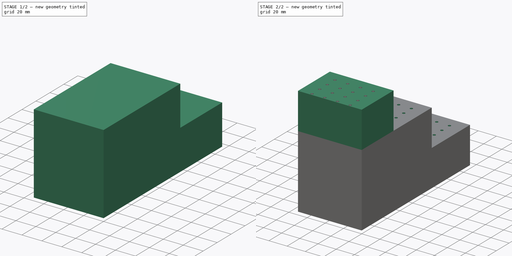
[diagram: build sequence overview — one tinted view per stage of 2, left to right]
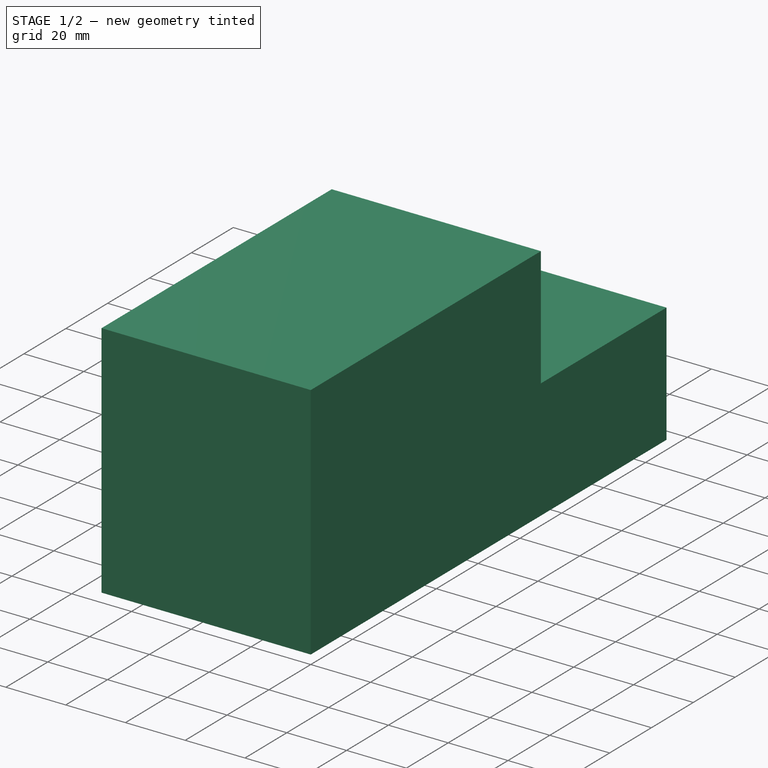
[diagram: stage 1 of 2 — iso view after this stage's code; geometry added in this stage tinted green]
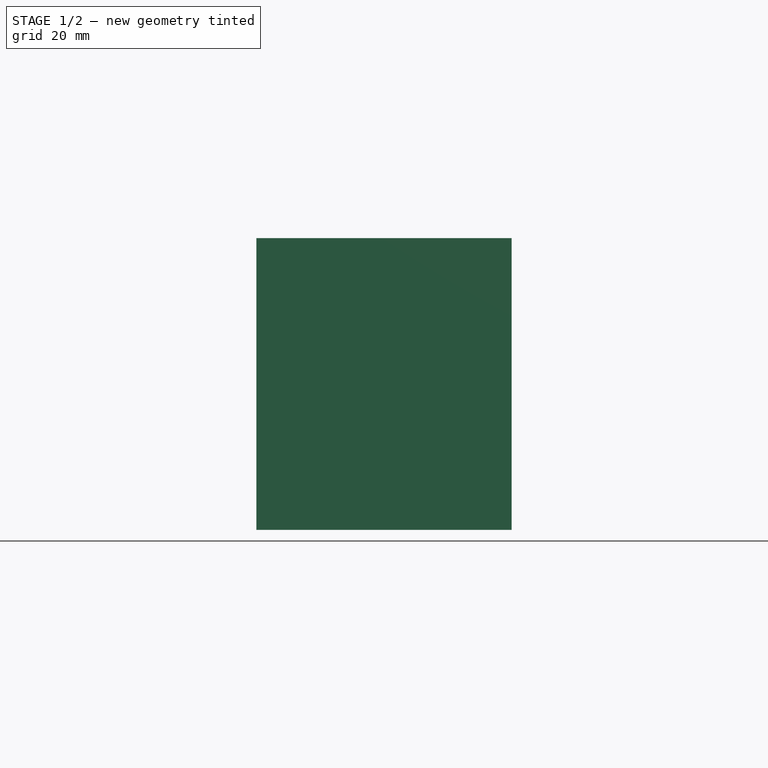
[diagram: stage 1 of 2 — front view after this stage's code; geometry added in this stage tinted green]
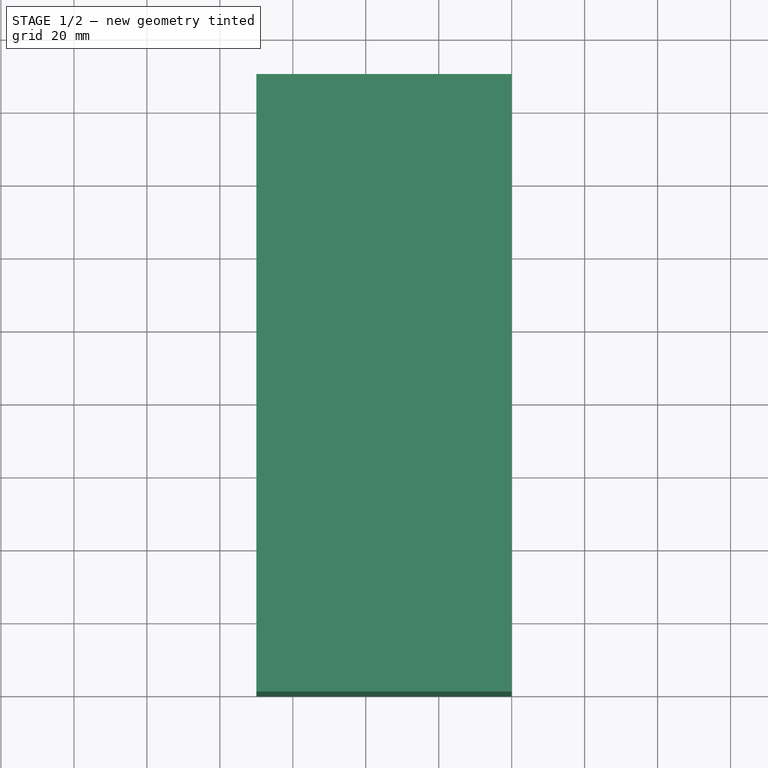
[diagram: stage 1 of 2 — top view after this stage's code; geometry added in this stage tinted green]
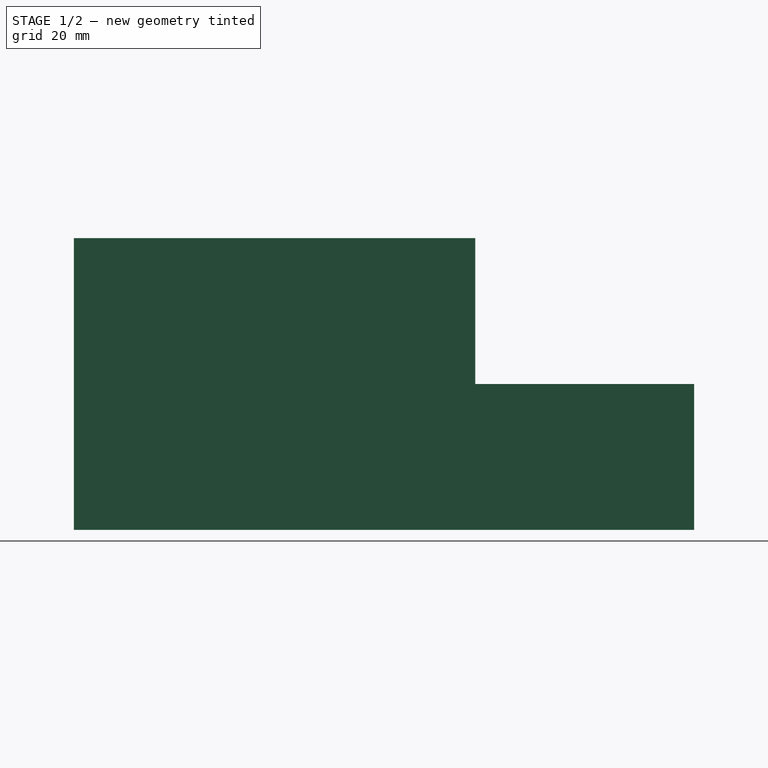
[diagram: stage 1 of 2 — right view after this stage's code; geometry added in this stage tinted green]
FCSTD DOCUMENT  (FreeCAD 0.18R4 (GitTag))
Label: FileBase
License: All rights reserved
LicenseURL: http://en.wikipedia.org/wiki/All_rights_reserved
objects: Sketcher::SketchObject×4, PartDesign::Pad×3, PartDesign::Pocket×1, PartDesign::Body×1
note: 13 computed .brp shape members not serialized (recipe doc carries the construction recipe); baked Part::Feature solids carry a one-line shape summary decoded from their .brp

FEATURE [Sketcher::SketchObject] Sketch
  MapMode = 5
  Support = -> [XY_Plane]
  sketch-geometry (4):
    g0: LineSegment StartX=0 StartY=0 StartZ=0 EndX=-70 EndY=0 EndZ=0
    g1: LineSegment StartX=-70 StartY=0 StartZ=0 EndX=-70 EndY=170 EndZ=0
    g2: LineSegment StartX=-70 StartY=170 StartZ=0 EndX=0 EndY=170 EndZ=0
    g3: LineSegment StartX=0 StartY=170 StartZ=0 EndX=0 EndY=0 EndZ=0
  constraints (11):
    c: Coincident(g0,g1)
    c: Coincident(g1,g2)
    c: Coincident(g2,g3)
    c: Coincident(g3,g0)
    c: Horizontal(g0)
    c: Horizontal(g2)
    c: Vertical(g1)
    c: Vertical(g3)
    c: Distance(g2) = 70
    c: Distance(g3) = 170
    c: Coincident(g0,g-1)
FEATURE [PartDesign::Pad] Pad
  Length = 40
  Length2 = 100
  Profile = -> Sketch
  Type = 0
FEATURE [Sketcher::SketchObject] Sketch001
  MapMode = 5
  Placement = pos=(0,0,40) rot=(0,0,1;0rad)
  Support = -> [Pad]
  sketch-geometry (4):
    g0: LineSegment StartX=0 StartY=0 StartZ=0 EndX=-70 EndY=3e-16 EndZ=0
    g1: LineSegment StartX=-70 StartY=3e-16 StartZ=0 EndX=-70 EndY=110 EndZ=0
    g2: LineSegment StartX=-70 StartY=110 StartZ=0 EndX=0 EndY=110 EndZ=0
    g3: LineSegment StartX=0 StartY=110 StartZ=0 EndX=0 EndY=0 EndZ=0
  constraints (10):
    c: Coincident(g0,g1)
    c: Coincident(g1,g2)
    c: Coincident(g2,g3)
    c: Coincident(g3,g0)
    c: Horizontal(g2)
    c: Vertical(g1)
    c: Tangent(g3,g-2)
    c: Tangent(g0,g-1)
    c: Distance(g0) = 70
    c: Distance(g3) = 110
FEATURE [PartDesign::Pad] Pad001
  BaseFeature = -> Pad
  Length = 40
  Length2 = 100
  Profile = -> Sketch001
  Type = 0
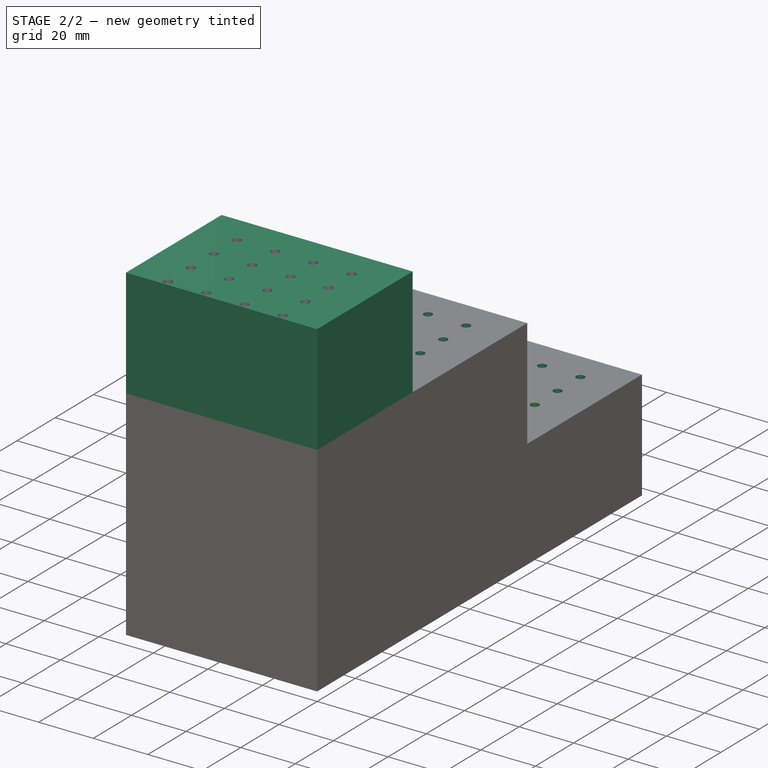
[diagram: stage 2 of 2 — iso view after this stage's code; geometry added in this stage tinted green]
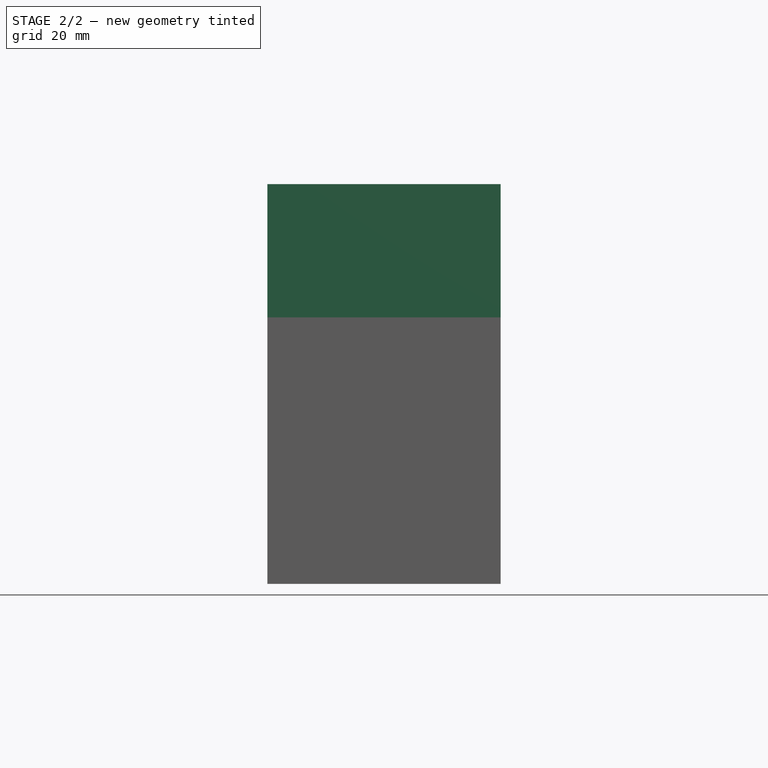
[diagram: stage 2 of 2 — front view after this stage's code; geometry added in this stage tinted green]
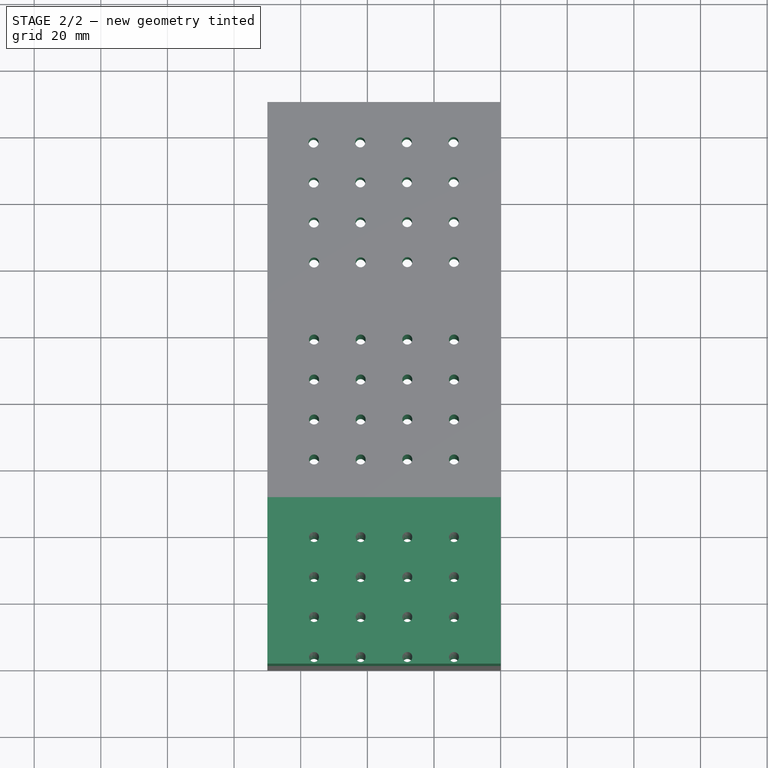
[diagram: stage 2 of 2 — top view after this stage's code; geometry added in this stage tinted green]
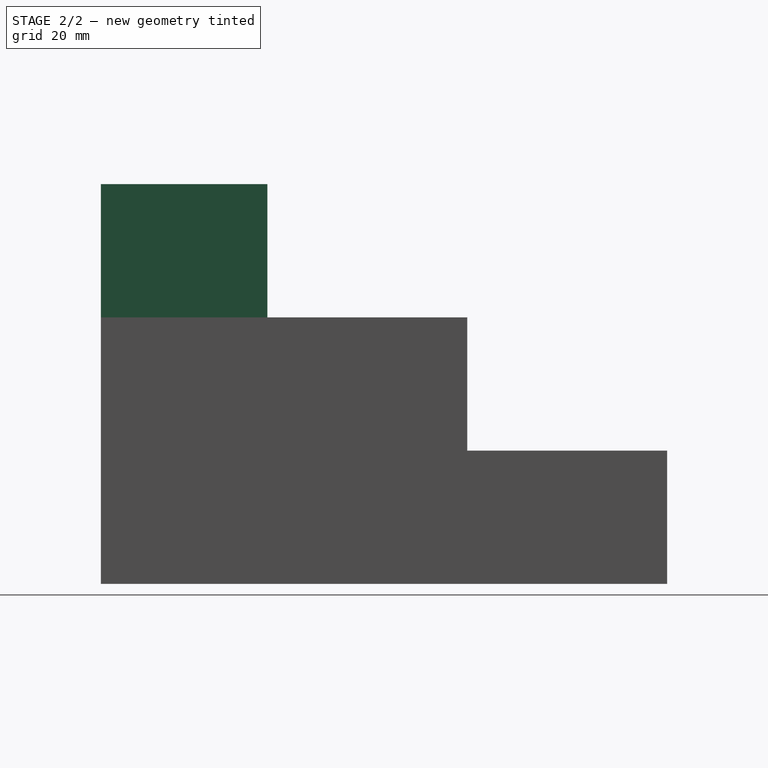
[diagram: stage 2 of 2 — right view after this stage's code; geometry added in this stage tinted green]
FEATURE [Sketcher::SketchObject] Sketch002
  MapMode = 5
  Placement = pos=(0,0,80) rot=(0,0,1;0rad)
  Support = -> [Pad001]
  sketch-geometry (4):
    g0: LineSegment StartX=0 StartY=0 StartZ=0 EndX=-70 EndY=0 EndZ=0
    g1: LineSegment StartX=-70 StartY=0 StartZ=0 EndX=-70 EndY=50 EndZ=0
    g2: LineSegment StartX=-70 StartY=50 StartZ=0 EndX=0 EndY=50 EndZ=0
    g3: LineSegment StartX=0 StartY=50 StartZ=0 EndX=0 EndY=0 EndZ=0
  constraints (11):
    c: Coincident(g0,g1)
    c: Coincident(g1,g2)
    c: Coincident(g2,g3)
    c: Coincident(g3,g0)
    c: Horizontal(g0)
    c: Horizontal(g2)
    c: Vertical(g1)
    c: Vertical(g3)
    c: Distance(g0) = 70
    c: Distance(g3) = 50
    c: Coincident(g0,g-1)
FEATURE [PartDesign::Pad] Pad002
  BaseFeature = -> Pad001
  Length = 40
  Length2 = 100
  Profile = -> Sketch002
  Type = 0
FEATURE [Sketcher::SketchObject] Sketch003
  MapMode = 5
  Placement = pos=(0,0,0) rot=(1,0,0;3.14159rad)
  Support = -> [Pad002]
  sketch-geometry (93):
    g0: Circle CenterX=-14 CenterY=-122 CenterZ=0 NormalX=0 NormalY=0 NormalZ=1 AngleXU=0 Radius=1.5
    g1: Circle CenterX=-14 CenterY=-62 CenterZ=0 NormalX=0 NormalY=0 NormalZ=1 AngleXU=0 Radius=1.5
    g2: Circle CenterX=-14 CenterY=-2 CenterZ=0 NormalX=0 NormalY=0 NormalZ=1 AngleXU=0 Radius=1.5
    g3: Circle CenterX=-14 CenterY=-14 CenterZ=0 NormalX=0 NormalY=0 NormalZ=1 AngleXU=0 Radius=1.5
    g4: LineSegment [constr] StartX=-14 StartY=-2 StartZ=0 EndX=-14 EndY=-14 EndZ=0
    g5: Circle CenterX=-14 CenterY=-26 CenterZ=0 NormalX=0 NormalY=0 NormalZ=1 AngleXU=0 Radius=1.5
    g6: LineSegment [constr] StartX=-14 StartY=-14 StartZ=0 EndX=-14 EndY=-26 EndZ=0
    g7: Circle CenterX=-14 CenterY=-38 CenterZ=0 NormalX=0 NormalY=0 NormalZ=1 AngleXU=0 Radius=1.5
    g8: LineSegment [constr] StartX=-14 StartY=-26 StartZ=0 EndX=-14 EndY=-38 EndZ=0
    g9: Circle CenterX=-28 CenterY=-2 CenterZ=0 NormalX=0 NormalY=0 NormalZ=1 AngleXU=0 Radius=1.5
    g10: LineSegment [constr] StartX=-14 StartY=-2 StartZ=0 EndX=-28 EndY=-2 EndZ=0
    g11: Circle CenterX=-28 CenterY=-14 CenterZ=0 NormalX=0 NormalY=0 NormalZ=1 AngleXU=0 Radius=1.5
    g12: LineSegment [constr] StartX=-28 StartY=-2 StartZ=0 EndX=-28 EndY=-14 EndZ=0
    g13: Circle CenterX=-28 CenterY=-26 CenterZ=0 NormalX=0 NormalY=0 NormalZ=1 AngleXU=0 Radius=1.5
    g14: LineSegment [constr] StartX=-28 StartY=-14 StartZ=0 EndX=-28 EndY=-26 EndZ=0
    g15: Circle CenterX=-28 CenterY=-38 CenterZ=0 NormalX=0 NormalY=0 NormalZ=1 AngleXU=0 Radius=1.5
    g16: LineSegment [constr] StartX=-28 StartY=-26 StartZ=0 EndX=-28 EndY=-38 EndZ=0
    g17: Circle CenterX=-42 CenterY=-2 CenterZ=0 NormalX=0 NormalY=0 NormalZ=1 AngleXU=0 Radius=1.5
    g18: LineSegment [constr] StartX=-28 StartY=-2 StartZ=0 EndX=-42 EndY=-2 EndZ=0
    g19: Circle CenterX=-42 CenterY=-14 CenterZ=0 NormalX=0 NormalY=0 NormalZ=1 AngleXU=0 Radius=1.5
    g20: LineSegment [constr] StartX=-42 StartY=-2 StartZ=0 EndX=-42 EndY=-14 EndZ=0
    g21: Circle CenterX=-42 CenterY=-26 CenterZ=0 NormalX=0 NormalY=0 NormalZ=1 AngleXU=0 Radius=1.5
    g22: LineSegment [constr] StartX=-42 StartY=-14 StartZ=0 EndX=-42 EndY=-26 EndZ=0
    g23: Circle CenterX=-42 CenterY=-38 CenterZ=0 NormalX=0 NormalY=0 NormalZ=1 AngleXU=0 Radius=1.5
    g24: LineSegment [constr] StartX=-42 StartY=-26 StartZ=0 EndX=-42 EndY=-38 EndZ=0
    g25: Circle CenterX=-56 CenterY=-2 CenterZ=0 NormalX=0 NormalY=0 NormalZ=1 AngleXU=0 Radius=1.5
    g26: LineSegment [constr] StartX=-42 StartY=-2 StartZ=0 EndX=-56 EndY=-2 EndZ=0
    g27: Circle CenterX=-56 CenterY=-14 CenterZ=0 NormalX=0 NormalY=0 NormalZ=1 AngleXU=0 Radius=1.5
    g28: LineSegment [constr] StartX=-56 StartY=-2 StartZ=0 EndX=-56 EndY=-14 EndZ=0
    g29: Circle CenterX=-56 CenterY=-26 CenterZ=0 NormalX=0 NormalY=0 NormalZ=1 AngleXU=0 Radius=1.5
    g30: LineSegment [constr] StartX=-56 StartY=-14 StartZ=0 EndX=-56 EndY=-26 EndZ=0
    g31: Circle CenterX=-56 CenterY=-38 CenterZ=0 NormalX=0 NormalY=0 NormalZ=1 AngleXU=0 Radius=1.5
    g32: LineSegment [constr] StartX=-56 StartY=-26 StartZ=0 EndX=-56 EndY=-38 EndZ=0
    g33: Circle CenterX=-14 CenterY=-74 CenterZ=0 NormalX=0 NormalY=0 NormalZ=1 AngleXU=0 Radius=1.5
    g34: LineSegment [constr] StartX=-14 StartY=-62 StartZ=0 EndX=-14 EndY=-74 EndZ=0
    g35: Circle CenterX=-14 CenterY=-86 CenterZ=0 NormalX=0 NormalY=0 NormalZ=1 AngleXU=0 Radius=1.5
    g36: LineSegment [constr] StartX=-14 StartY=-74 StartZ=0 EndX=-14 EndY=-86 EndZ=0
    g37: Circle CenterX=-14 CenterY=-98 CenterZ=0 NormalX=0 NormalY=0 NormalZ=1 AngleXU=0 Radius=1.5
    g38: LineSegment [constr] StartX=-14 StartY=-86 StartZ=0 EndX=-14 EndY=-98 EndZ=0
    g39: Circle CenterX=-28 CenterY=-62 CenterZ=0 NormalX=0 NormalY=0 NormalZ=1 AngleXU=0 Radius=1.5
    g40: LineSegment [constr] StartX=-14 StartY=-62 StartZ=0 EndX=-28 EndY=-62 EndZ=0
    g41: Circle CenterX=-28 CenterY=-74 CenterZ=0 NormalX=0 NormalY=0 NormalZ=1 AngleXU=0 Radius=1.5
    g42: LineSegment [constr] StartX=-28 StartY=-62 StartZ=0 EndX=-28 EndY=-74 EndZ=0
    g43: Circle CenterX=-28 CenterY=-86 CenterZ=0 NormalX=0 NormalY=0 NormalZ=1 AngleXU=0 Radius=1.5
    g44: LineSegment [constr] StartX=-28 StartY=-74 StartZ=0 EndX=-28 EndY=-86 EndZ=0
    g45: Circle CenterX=-28 CenterY=-98 CenterZ=0 NormalX=0 NormalY=0 NormalZ=1 AngleXU=0 Radius=1.5
    g46: LineSegment [constr] StartX=-28 StartY=-86 StartZ=0 EndX=-28 EndY=-98 EndZ=0
    g47: Circle CenterX=-42 CenterY=-62 CenterZ=0 NormalX=0 NormalY=0 NormalZ=1 AngleXU=0 Radius=1.5
    g48: LineSegment [constr] StartX=-28 StartY=-62 StartZ=0 EndX=-42 EndY=-62 EndZ=0
    g49: Circle CenterX=-42 CenterY=-74 CenterZ=0 NormalX=0 NormalY=0 NormalZ=1 AngleXU=0 Radius=1.5
    g50: LineSegment [constr] StartX=-42 StartY=-62 StartZ=0 EndX=-42 EndY=-74 EndZ=0
    g51: Circle CenterX=-42 CenterY=-86 CenterZ=0 NormalX=0 NormalY=0 NormalZ=1 AngleXU=0 Radius=1.5
    g52: LineSegment [constr] StartX=-42 StartY=-74 StartZ=0 EndX=-42 EndY=-86 EndZ=0
    g53: Circle CenterX=-42 CenterY=-98 CenterZ=0 NormalX=0 NormalY=0 NormalZ=1 AngleXU=0 Radius=1.5
    g54: LineSegment [constr] StartX=-42 StartY=-86 StartZ=0 EndX=-42 EndY=-98 EndZ=0
    g55: Circle CenterX=-56 CenterY=-62 CenterZ=0 NormalX=0 NormalY=0 NormalZ=1 AngleXU=0 Radius=1.5
    g56: LineSegment [constr] StartX=-42 StartY=-62 StartZ=0 EndX=-56 EndY=-62 EndZ=0
    g57: Circle CenterX=-56 CenterY=-74 CenterZ=0 NormalX=0 NormalY=0 NormalZ=1 AngleXU=0 Radius=1.5
    g58: LineSegment [constr] StartX=-56 StartY=-62 StartZ=0 EndX=-56 EndY=-74 EndZ=0
    g59: Circle CenterX=-56 CenterY=-86 CenterZ=0 NormalX=0 NormalY=0 NormalZ=1 AngleXU=0 Radius=1.5
    g60: LineSegment [constr] StartX=-56 StartY=-74 StartZ=0 EndX=-56 EndY=-86 EndZ=0
    g61: Circle CenterX=-56 CenterY=-98 CenterZ=0 NormalX=0 NormalY=0 NormalZ=1 AngleXU=0 Radius=1.5
    g62: LineSegment [constr] StartX=-56 StartY=-86 StartZ=0 EndX=-56 EndY=-98 EndZ=0
    g63: Circle CenterX=-14.0502 CenterY=-134 CenterZ=0 NormalX=0 NormalY=0 NormalZ=1 AngleXU=0 Radius=1.5
    g64: LineSegment [constr] StartX=-14 StartY=-122 StartZ=0 EndX=-14.0502 EndY=-134 EndZ=0
    g65: Circle CenterX=-14.1004 CenterY=-146 CenterZ=0 NormalX=0 NormalY=0 NormalZ=1 AngleXU=0 Radius=1.5
    g66: LineSegment [constr] StartX=-14.0502 StartY=-134 StartZ=0 EndX=-14.1004 EndY=-146 EndZ=0
    g67: Circle CenterX=-14.1506 CenterY=-158 CenterZ=0 NormalX=0 NormalY=0 NormalZ=1 AngleXU=0 Radius=1.5
    g68: LineSegment [constr] StartX=-14.1004 StartY=-146 StartZ=0 EndX=-14.1506 EndY=-158 EndZ=0
    g69: Circle CenterX=-27.9999 CenterY=-121.941 CenterZ=0 NormalX=0 NormalY=0 NormalZ=1 AngleXU=0 Radius=1.5
    g70: LineSegment [constr] StartX=-14 StartY=-122 StartZ=0 EndX=-27.9999 EndY=-121.941 EndZ=0
    g71: Circle CenterX=-28.0501 CenterY=-133.941 CenterZ=0 NormalX=0 NormalY=0 NormalZ=1 AngleXU=0 Radius=1.5
    g72: LineSegment [constr] StartX=-27.9999 StartY=-121.941 StartZ=0 EndX=-28.0501 EndY=-133.941 EndZ=0
    g73: Circle CenterX=-28.1003 CenterY=-145.941 CenterZ=0 NormalX=0 NormalY=0 NormalZ=1 AngleXU=0 Radius=1.5
    g74: LineSegment [constr] StartX=-28.0501 StartY=-133.941 StartZ=0 EndX=-28.1003 EndY=-145.941 EndZ=0
    g75: Circle CenterX=-28.1505 CenterY=-157.941 CenterZ=0 NormalX=0 NormalY=0 NormalZ=1 AngleXU=0 Radius=1.5
    g76: LineSegment [constr] StartX=-28.1003 StartY=-145.941 StartZ=0 EndX=-28.1505 EndY=-157.941 EndZ=0
    g77: Circle CenterX=-41.9998 CenterY=-121.883 CenterZ=0 NormalX=0 NormalY=0 NormalZ=1 AngleXU=0 Radius=1.5
    g78: LineSegment [constr] StartX=-27.9999 StartY=-121.941 StartZ=0 EndX=-41.9998 EndY=-121.883 EndZ=0
    g79: Circle CenterX=-42.05 CenterY=-133.883 CenterZ=0 NormalX=0 NormalY=0 NormalZ=1 AngleXU=0 Radius=1.5
    g80: LineSegment [constr] StartX=-41.9998 StartY=-121.883 StartZ=0 EndX=-42.05 EndY=-133.883 EndZ=0
    g81: Circle CenterX=-42.1002 CenterY=-145.883 CenterZ=0 NormalX=0 NormalY=0 NormalZ=1 AngleXU=0 Radius=1.5
    g82: LineSegment [constr] StartX=-42.05 StartY=-133.883 StartZ=0 EndX=-42.1002 EndY=-145.883 EndZ=0
    g83: Circle CenterX=-42.1504 CenterY=-157.883 CenterZ=0 NormalX=0 NormalY=0 NormalZ=1 AngleXU=0 Radius=1.5
    g84: LineSegment [constr] StartX=-42.1002 StartY=-145.883 StartZ=0 EndX=-42.1504 EndY=-157.883 EndZ=0
    g85: Circle CenterX=-55.9996 CenterY=-121.824 CenterZ=0 NormalX=0 NormalY=0 NormalZ=1 AngleXU=0 Radius=1.5
    g86: LineSegment [constr] StartX=-41.9998 StartY=-121.883 StartZ=0 EndX=-55.9996 EndY=-121.824 EndZ=0
    g87: Circle CenterX=-56.0498 CenterY=-133.824 CenterZ=0 NormalX=0 NormalY=0 NormalZ=1 AngleXU=0 Radius=1.5
    g88: LineSegment [constr] StartX=-55.9996 StartY=-121.824 StartZ=0 EndX=-56.0498 EndY=-133.824 EndZ=0
    g89: Circle CenterX=-56.1 CenterY=-145.824 CenterZ=0 NormalX=0 NormalY=0 NormalZ=1 AngleXU=0 Radius=1.5
    g90: LineSegment [constr] StartX=-56.0498 StartY=-133.824 StartZ=0 EndX=-56.1 EndY=-145.824 EndZ=0
    g91: Circle CenterX=-56.1503 CenterY=-157.824 CenterZ=0 NormalX=0 NormalY=0 NormalZ=1 AngleXU=0 Radius=1.5
    g92: LineSegment [constr] StartX=-56.1 StartY=-145.824 StartZ=0 EndX=-56.1503 EndY=-157.824 EndZ=0
  constraints (234):
    c: Radius(g2) = 1.5
    c: Distance(g2,g-2) = 14
    c: Distance(g2,g-1) = 2
    c: Radius(g3) = 1.5
    c: Coincident(g2,g4)
    c: Coincident(g3,g4)
    c: Distance(g4) = 12
    c: Angle(g4) = -1.5708
    c: Radius(g5) = 1.5
    c: Coincident(g3,g6)
    c: Coincident(g5,g6)
    c: Equal(g4,g6)
    c: Parallel(g6,g4)
    c: Radius(g7) = 1.5
    c: Coincident(g5,g8)
    c: Coincident(g7,g8)
    c: Equal(g4,g8)
    c: Parallel(g8,g4)
    c: Radius(g9) = 1.5
    c: Coincident(g2,g10)
    c: Coincident(g9,g10)
    c: Distance(g10) = 14
    c: Perpendicular(g10,g4)
    c: Radius(g11) = 1.5
    c: Coincident(g9,g12)
    c: Coincident(g11,g12)
    c: Equal(g4,g12)
    c: Parallel(g12,g4)
    c: Radius(g13) = 1.5
    c: Coincident(g11,g14)
    c: Coincident(g13,g14)
    c: Equal(g4,g14)
    c: Parallel(g14,g4)
    c: Radius(g15) = 1.5
    c: Coincident(g13,g16)
    c: Coincident(g15,g16)
    c: Equal(g4,g16)
    c: Parallel(g16,g4)
    c: Radius(g17) = 1.5
    c: Coincident(g9,g18)
    c: Coincident(g17,g18)
    c: Equal(g10,g18)
    c: Perpendicular(g18,g4)
    c: Radius(g19) = 1.5
    c: Coincident(g17,g20)
    c: Coincident(g19,g20)
    c: Equal(g4,g20)
    c: Parallel(g20,g4)
    c: Radius(g21) = 1.5
    c: Coincident(g19,g22)
    c: Coincident(g21,g22)
    c: Equal(g4,g22)
    c: Parallel(g22,g4)
    c: Radius(g23) = 1.5
    c: Coincident(g21,g24)
    c: Coincident(g23,g24)
    c: Equal(g4,g24)
    c: Parallel(g24,g4)
    c: Radius(g25) = 1.5
    c: Coincident(g17,g26)
    c: Coincident(g25,g26)
    c: Equal(g10,g26)
    c: Perpendicular(g26,g4)
    c: Radius(g27) = 1.5
    c: Coincident(g25,g28)
    c: Coincident(g27,g28)
    c: Equal(g4,g28)
    c: Parallel(g28,g4)
    c: Radius(g29) = 1.5
    c: Coincident(g27,g30)
    c: Coincident(g29,g30)
    c: Equal(g4,g30)
    c: Parallel(g30,g4)
    c: Radius(g31) = 1.5
    c: Coincident(g29,g32)
    c: Coincident(g31,g32)
    c: Equal(g4,g32)
    c: Parallel(g32,g4)
    c: Radius(g1) = 1.5
    c: Distance(g1,g7) = 24
    c: Distance(g1,g-2) = 14
    c: Radius(g33) = 1.5
    c: Coincident(g1,g34)
    c: Coincident(g33,g34)
    c: Distance(g34) = 12
    c: Angle(g34) = -1.5708
    c: Radius(g35) = 1.5
    c: Coincident(g33,g36)
    c: Coincident(g35,g36)
    c: Equal(g34,g36)
    c: Parallel(g36,g34)
    c: Radius(g37) = 1.5
    c: Coincident(g35,g38)
    c: Coincident(g37,g38)
    c: Equal(g34,g38)
    c: Parallel(g38,g34)
    c: Radius(g39) = 1.5
    c: Coincident(g1,g40)
    c: Coincident(g39,g40)
    c: Distance(g40) = 14
    c: Perpendicular(g40,g34)
    c: Radius(g41) = 1.5
    c: Coincident(g39,g42)
    c: Coincident(g41,g42)
    c: Equal(g34,g42)
    c: Parallel(g42,g34)
    c: Radius(g43) = 1.5
    c: Coincident(g41,g44)
    c: Coincident(g43,g44)
    c: Equal(g34,g44)
    c: Parallel(g44,g34)
    c: Radius(g45) = 1.5
    c: Coincident(g43,g46)
    c: Coincident(g45,g46)
    c: Equal(g34,g46)
    c: Parallel(g46,g34)
    c: Radius(g47) = 1.5
    c: Coincident(g39,g48)
    c: Coincident(g47,g48)
    c: Equal(g40,g48)
    c: Perpendicular(g48,g34)
    c: Radius(g49) = 1.5
    c: Coincident(g47,g50)
    c: Coincident(g49,g50)
    c: Equal(g34,g50)
    c: Parallel(g50,g34)
    c: Radius(g51) = 1.5
    c: Coincident(g49,g52)
    c: Coincident(g51,g52)
    c: Equal(g34,g52)
    c: Parallel(g52,g34)
    c: Radius(g53) = 1.5
    c: Coincident(g51,g54)
    c: Coincident(g53,g54)
    c: Equal(g34,g54)
    c: Parallel(g54,g34)
    c: Radius(g55) = 1.5
    c: Coincident(g47,g56)
    c: Coincident(g55,g56)
    c: Equal(g40,g56)
    c: Perpendicular(g56,g34)
    c: Radius(g57) = 1.5
    c: Coincident(g55,g58)
    c: Coincident(g57,g58)
    c: Equal(g34,g58)
    c: Parallel(g58,g34)
    c: Radius(g59) = 1.5
    c: Coincident(g57,g60)
    c: Coincident(g59,g60)
    c: Equal(g34,g60)
    c: Parallel(g60,g34)
    c: Radius(g61) = 1.5
    c: Coincident(g59,g62)
    c: Coincident(g61,g62)
    c: Equal(g34,g62)
    c: Parallel(g62,g34)
    c: Radius(g0) = 1.5
    c: Distance(g0,g37) = 24
    c: Distance(g0,g-2) = 14
    c: Radius(g63) = 1.5
    c: Coincident(g0,g64)
    c: Coincident(g63,g64)
    c: Distance(g64) = 12
    c: Angle(g64) = -1.57498
    c: Radius(g65) = 1.5
    c: Coincident(g63,g66)
    c: Coincident(g65,g66)
    c: Equal(g64,g66)
    c: Parallel(g66,g64)
    c: Radius(g67) = 1.5
    c: Coincident(g65,g68)
    c: Coincident(g67,g68)
    c: Equal(g64,g68)
    c: Parallel(g68,g64)
    c: Radius(g69) = 1.5
    c: Coincident(g0,g70)
    c: Coincident(g69,g70)
    c: Distance(g70) = 14
    c: Perpendicular(g70,g64)
    c: Radius(g71) = 1.5
    c: Coincident(g69,g72)
    c: Coincident(g71,g72)
    c: Equal(g64,g72)
    c: Parallel(g72,g64)
    c: Radius(g73) = 1.5
    c: Coincident(g71,g74)
    c: Coincident(g73,g74)
    c: Equal(g64,g74)
    c: Parallel(g74,g64)
    c: Radius(g75) = 1.5
    c: Coincident(g73,g76)
    c: Coincident(g75,g76)
    c: Equal(g64,g76)
    c: Parallel(g76,g64)
    c: Radius(g77) = 1.5
    c: Coincident(g69,g78)
    c: Coincident(g77,g78)
    c: Equal(g70,g78)
    c: Perpendicular(g78,g64)
    c: Radius(g79) = 1.5
    c: Coincident(g77,g80)
    c: Coincident(g79,g80)
    c: Equal(g64,g80)
    c: Parallel(g80,g64)
    c: Radius(g81) = 1.5
    c: Coincident(g79,g82)
    c: Coincident(g81,g82)
    c: Equal(g64,g82)
    c: Parallel(g82,g64)
    c: Radius(g83) = 1.5
    c: Coincident(g81,g84)
    c: Coincident(g83,g84)
    c: Equal(g64,g84)
    c: Parallel(g84,g64)
    c: Radius(g85) = 1.5
    c: Coincident(g77,g86)
    c: Coincident(g85,g86)
    c: Equal(g70,g86)
    c: Perpendicular(g86,g64)
    c: Radius(g87) = 1.5
    c: Coincident(g85,g88)
    c: Coincident(g87,g88)
    c: Equal(g64,g88)
    c: Parallel(g88,g64)
    c: Radius(g89) = 1.5
    c: Coincident(g87,g90)
    c: Coincident(g89,g90)
    c: Equal(g64,g90)
    c: Parallel(g90,g64)
    c: Radius(g91) = 1.5
    c: Coincident(g89,g92)
    c: Coincident(g91,g92)
    c: Equal(g64,g92)
    c: Parallel(g92,g64)
FEATURE [PartDesign::Pocket] Pocket
  BaseFeature = -> Pad002
  Length = 5
  Length2 = 100
  Profile = -> Sketch003
  Type = 1
FEATURE [PartDesign::Body] Body
  Group = -> [Sketch,Pad,Sketch001,Pad001,Sketch002,Pad002,Sketch003,Pocket]
  Origin = -> Origin
  Tip = -> Pocket
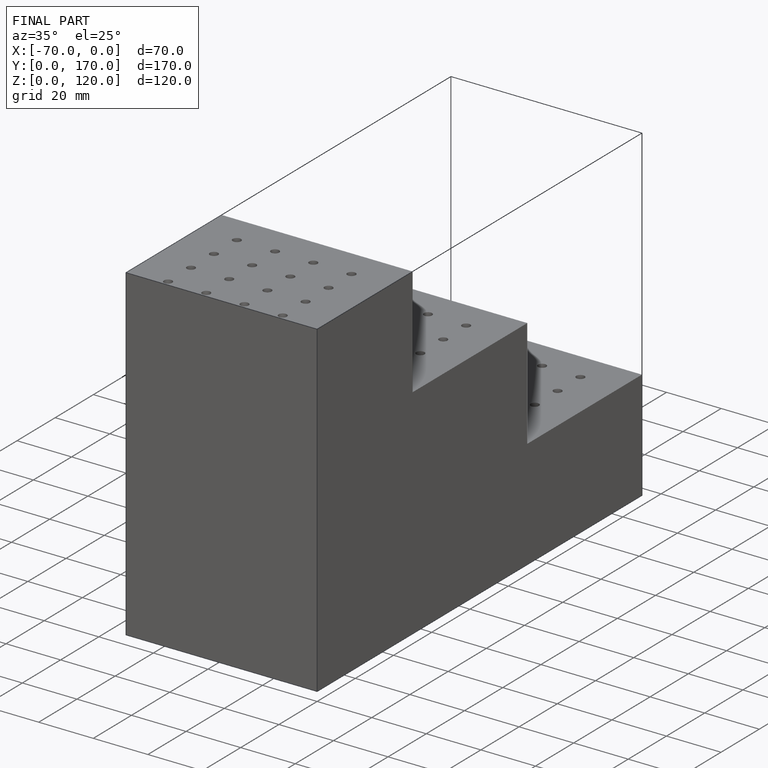
[diagram: finished part — iso view with bounding-box wireframe]
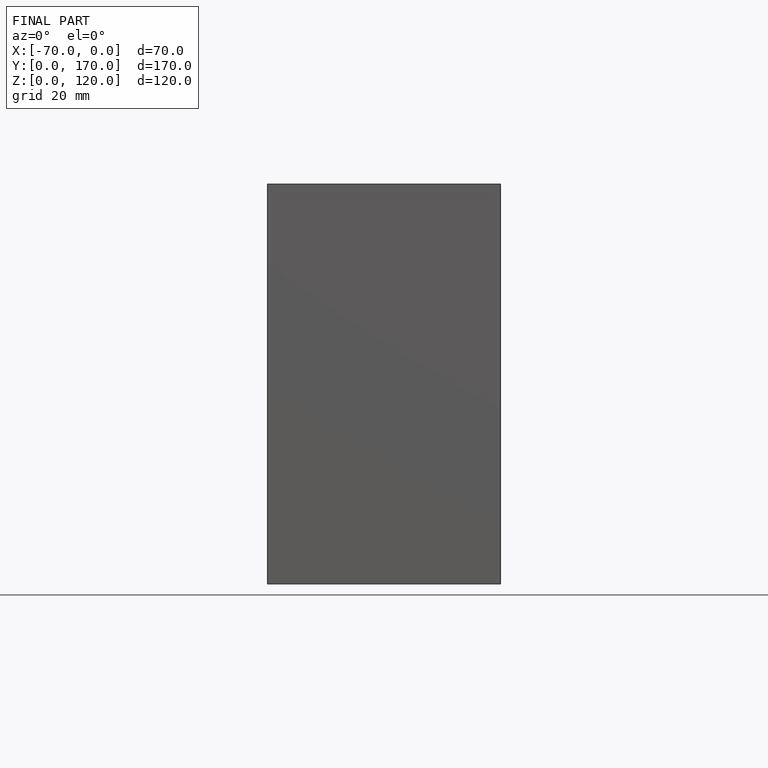
[diagram: finished part — front view with bounding-box wireframe]
